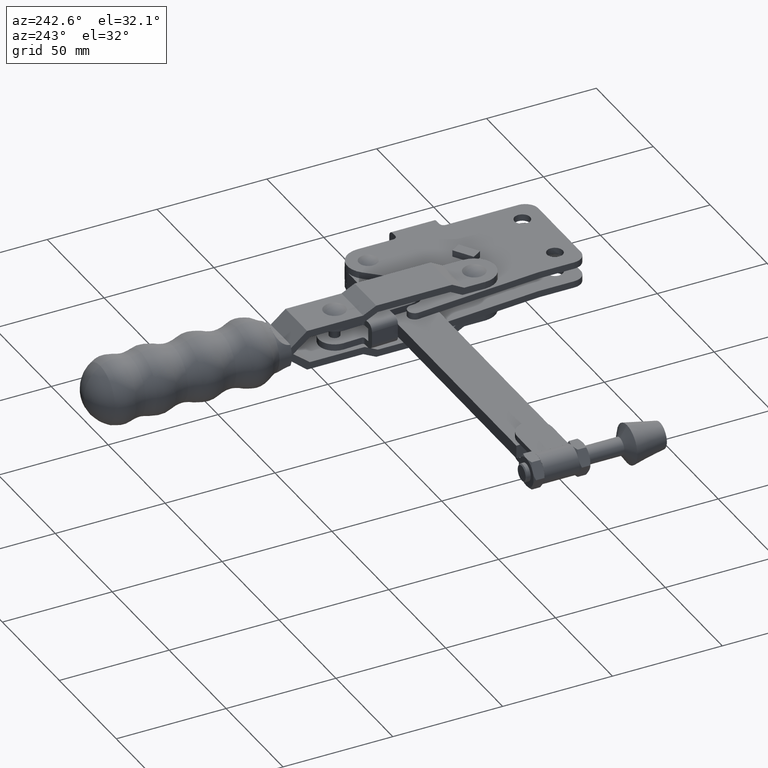
[diagram: clean part render]
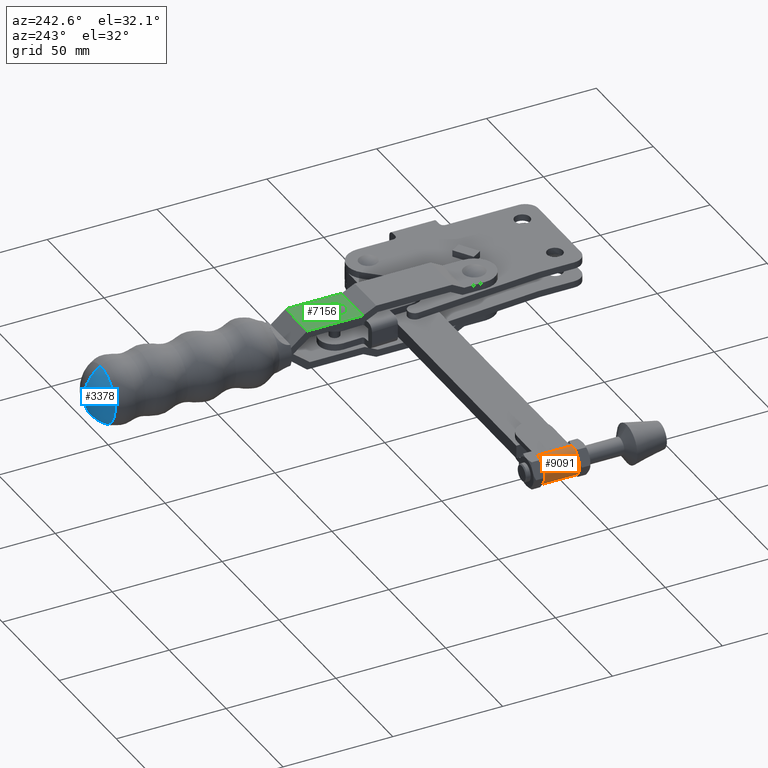
[diagram: same view with three faces highlighted in distinct colors, each labeled with its STEP entity id]
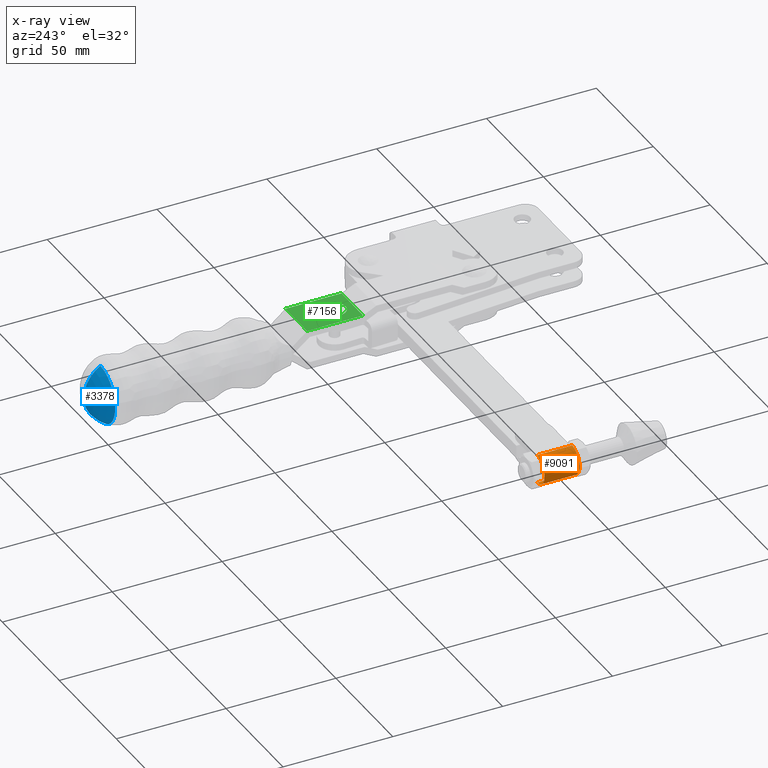
[diagram: x-ray of the same camera — body ghosted, the three highlighted faces saturated]
A machine part, auxiliary view with three faces highlighted in distinct colors.
The next image is the same camera in x-ray (body ghosted, the three faces saturated) — at least one of them is partly hidden behind the body in this view.
Their STEP definitions:

[orange] entity #9091 — the highlighted cylindrical surface (edge-blend (fillet) strip) has radius 6.55 mm, axis along (-0, -1, -0).
#267 = ORIENTED_EDGE ( 'NONE', *, *, #6316, .F. ) ;
#1061 = EDGE_CURVE ( 'NONE', #5328, #2572, #3614, .T. ) ;
#1177 = CIRCLE ( 'NONE', #1557, 6.550000000000000700 ) ;
#1210 = DIRECTION ( 'NONE',  ( 0.0000000000000000000, 0.0000000000000000000, -1.000000000000000000 ) ) ;
#1299 = DIRECTION ( 'NONE',  ( -0.0000000000000000000, -1.000000000000000000, -0.0000000000000000000 ) ) ;
#1363 = CARTESIAN_POINT ( 'NONE',  ( -173.2739711762832800, 68.61000000000024100, -5.204170427930421300E-015 ) ) ;
#1557 = AXIS2_PLACEMENT_3D ( 'NONE', #9104, #2847, #8998 ) ;
#2204 = DIRECTION ( 'NONE',  ( 1.000000000000000000, 0.0000000000000000000, 0.0000000000000000000 ) ) ;
#2220 = CARTESIAN_POINT ( 'NONE',  ( -173.2739711762832800, 68.61000000000024100, -5.204170427930421300E-015 ) ) ;
#2269 = DIRECTION ( 'NONE',  ( 0.0000000000000000000, 1.000000000000000000, 0.0000000000000000000 ) ) ;
#2521 = AXIS2_PLACEMENT_3D ( 'NONE', #1363, #1299, #1210 ) ;
#2572 = VERTEX_POINT ( 'NONE', #5743 ) ;
#2754 = VECTOR ( 'NONE', #7175, 1000.000000000000000 ) ;
#2847 = DIRECTION ( 'NONE',  ( 0.0000000000000000000, 1.000000000000000000, 0.0000000000000000000 ) ) ;
#3504 = CARTESIAN_POINT ( 'NONE',  ( -173.2739711762832800, 52.71000000000024200, 6.549999999999995400 ) ) ;
#3614 = LINE ( 'NONE', #6828, #7815 ) ;
#4118 = CARTESIAN_POINT ( 'NONE',  ( -173.2739711762832800, 68.61000000000024100, -6.550000000000005200 ) ) ;
#4256 = ORIENTED_EDGE ( 'NONE', *, *, #1061, .T. ) ;
#4510 = VERTEX_POINT ( 'NONE', #3504 ) ;
#4955 = ORIENTED_EDGE ( 'NONE', *, *, #7059, .T. ) ;
#5328 = VERTEX_POINT ( 'NONE', #4118 ) ;
#5743 = CARTESIAN_POINT ( 'NONE',  ( -173.2739711762832800, 52.71000000000024200, -6.550000000000005200 ) ) ;
#5823 = VERTEX_POINT ( 'NONE', #7888 ) ;
#5858 = DIRECTION ( 'NONE',  ( -0.0000000000000000000, -1.000000000000000000, -0.0000000000000000000 ) ) ;
#6128 = CIRCLE ( 'NONE', #6916, 6.550000000000000700 ) ;
#6316 = EDGE_CURVE ( 'NONE', #5823, #4510, #7117, .T. ) ;
#6828 = CARTESIAN_POINT ( 'NONE',  ( -173.2739711762832800, 68.61000000000024100, -6.550000000000005200 ) ) ;
#6916 = AXIS2_PLACEMENT_3D ( 'NONE', #2220, #2269, #2204 ) ;
#6997 = CARTESIAN_POINT ( 'NONE',  ( -173.2739711762832800, 68.61000000000024100, 6.549999999999995400 ) ) ;
#7059 = EDGE_CURVE ( 'NONE', #2572, #4510, #1177, .T. ) ;
#7117 = LINE ( 'NONE', #6997, #2754 ) ;
#7175 = DIRECTION ( 'NONE',  ( -0.0000000000000000000, -1.000000000000000000, -0.0000000000000000000 ) ) ;
#7253 = EDGE_LOOP ( 'NONE', ( #267, #7540, #4256, #4955 ) ) ;
#7540 = ORIENTED_EDGE ( 'NONE', *, *, #9702, .F. ) ;
#7815 = VECTOR ( 'NONE', #5858, 1000.000000000000000 ) ;
#7888 = CARTESIAN_POINT ( 'NONE',  ( -173.2739711762832800, 68.61000000000024100, 6.549999999999995400 ) ) ;
#8351 = CYLINDRICAL_SURFACE ( 'NONE', #2521, 6.550000000000000700 ) ;
#8998 = DIRECTION ( 'NONE',  ( 1.000000000000000000, 0.0000000000000000000, 0.0000000000000000000 ) ) ;
#9091 = ADVANCED_FACE ( 'NONE', ( #9460 ), #8351, .T. ) ;
#9104 = CARTESIAN_POINT ( 'NONE',  ( -173.2739711762832800, 52.71000000000024200, -5.204170427930421300E-015 ) ) ;
#9460 = FACE_OUTER_BOUND ( 'NONE', #7253, .T. ) ;
#9702 = EDGE_CURVE ( 'NONE', #5328, #5823, #6128, .T. ) ;

[blue] entity #3378 — the highlighted toroidal blend (fillet) surface has major radius 0.0116 mm and minor (blend) radius 15.0361 mm.
#330 = DIRECTION ( 'NONE',  ( 5.301320001231254800E-005, 0.9999999985948002700, 0.0000000000000000000 ) ) ;
#347 = DIRECTION ( 'NONE',  ( 0.9999999985948003800, -5.301320001245036400E-005, -1.908191406062422600E-016 ) ) ;
#370 = CARTESIAN_POINT ( 'NONE',  ( -40.88923383545749600, 191.3238571931479200, -0.01160999269274295600 ) ) ;
#948 = AXIS2_PLACEMENT_3D ( 'NONE', #7573, #9713, #1890 ) ;
#1028 = CIRCLE ( 'NONE', #10066, 15.03614265763732800 ) ;
#1890 = DIRECTION ( 'NONE',  ( 1.882973044817432600E-023, 3.551894701186225200E-019, -1.000000000000000000 ) ) ;
#2928 = VERTEX_POINT ( 'NONE', #5099 ) ;
#3367 = CARTESIAN_POINT ( 'NONE',  ( -40.88883527839028900, 198.8419294195952300, 3.194443237754403600E-013 ) ) ;
#3378 = ADVANCED_FACE ( 'NONE', ( #4137 ), #3432, .T. ) ;
#3432 = TOROIDAL_SURFACE ( 'NONE', #948, -0.01160999269306239900, 15.03614265763732400 ) ;
#4108 = ORIENTED_EDGE ( 'NONE', *, *, #4171, .F. ) ;
#4137 = FACE_OUTER_BOUND ( 'NONE', #9400, .T. ) ;
#4171 = EDGE_CURVE ( 'NONE', #7106, #2928, #8169, .T. ) ;
#4295 = AXIS2_PLACEMENT_3D ( 'NONE', #370, #347, #330 ) ;
#4408 = CIRCLE ( 'NONE', #4295, 15.03614265763732800 ) ;
#4783 = DIRECTION ( 'NONE',  ( 0.0000000000000000000, 0.0000000000000000000, -1.000000000000000000 ) ) ;
#5099 = CARTESIAN_POINT ( 'NONE',  ( -40.88883527839029600, 198.8419294195952300, -13.01007099940186700 ) ) ;
#5588 = AXIS2_PLACEMENT_3D ( 'NONE', #3367, #7925, #4783 ) ;
#6646 = ORIENTED_EDGE ( 'NONE', *, *, #6974, .F. ) ;
#6974 = EDGE_CURVE ( 'NONE', #7135, #7106, #4408, .T. ) ;
#7106 = VERTEX_POINT ( 'NONE', #8513 ) ;
#7135 = VERTEX_POINT ( 'NONE', #7878 ) ;
#7573 = CARTESIAN_POINT ( 'NONE',  ( -40.88923383545749600, 191.3238571931479200, 3.194416534353424200E-013 ) ) ;
#7865 = EDGE_CURVE ( 'NONE', #7135, #2928, #1028, .T. ) ;
#7878 = CARTESIAN_POINT ( 'NONE',  ( -40.88843672165699400, 206.3599953473915300, 3.194469941133010700E-013 ) ) ;
#7925 = DIRECTION ( 'NONE',  ( -5.301320001245037100E-005, -0.9999999985948004900, -3.551894706177347300E-019 ) ) ;
#8169 = CIRCLE ( 'NONE', #5588, 13.01007099940219200 ) ;
#8359 = ORIENTED_EDGE ( 'NONE', *, *, #7865, .T. ) ;
#8513 = CARTESIAN_POINT ( 'NONE',  ( -40.88883527839029600, 198.8419294195952300, 13.01007099940250600 ) ) ;
#8632 = DIRECTION ( 'NONE',  ( -5.301320001231254800E-005, -0.9999999985948002700, 0.0000000000000000000 ) ) ;
#8659 = DIRECTION ( 'NONE',  ( -0.9999999985948003800, 5.301320001245036400E-005, 6.835446069150691700E-017 ) ) ;
#8662 = CARTESIAN_POINT ( 'NONE',  ( -40.88923383545749600, 191.3238571931479200, 0.01160999269338183900 ) ) ;
#9400 = EDGE_LOOP ( 'NONE', ( #6646, #8359, #4108 ) ) ;
#9713 = DIRECTION ( 'NONE',  ( -5.301320001245035700E-005, -0.9999999985948002700, -3.551894706177346300E-019 ) ) ;
#10066 = AXIS2_PLACEMENT_3D ( 'NONE', #8662, #8659, #8632 ) ;

[green] entity #7156 — the highlighted planar face has unit normal (0, -0, 1).
#423 = DIRECTION ( 'NONE',  ( 1.000000000000000000, 0.0000000000000000000, 0.0000000000000000000 ) ) ;
#436 = DIRECTION ( 'NONE',  ( 6.936611590567913300E-020, -1.586539380122181100E-020, 1.000000000000000000 ) ) ;
#1005 = CARTESIAN_POINT ( 'NONE',  ( -50.39491651151166700, 84.13050354741129400, 9.199999999999551600 ) ) ;
#1520 = ORIENTED_EDGE ( 'NONE', *, *, #8979, .F. ) ;
#1553 = VERTEX_POINT ( 'NONE', #9288 ) ;
#1567 = AXIS2_PLACEMENT_3D ( 'NONE', #6059, #436, #423 ) ;
#1867 = LINE ( 'NONE', #5274, #10145 ) ;
#2177 = CARTESIAN_POINT ( 'NONE',  ( -31.39491653821045600, 84.12949629661106600, 9.199999999999551600 ) ) ;
#2184 = DIRECTION ( 'NONE',  ( -5.301320001215025700E-005, -0.9999999985948002700, -1.586171645915118900E-020 ) ) ;
#2241 = FACE_BOUND ( 'NONE', #2297, .T. ) ;
#2297 = EDGE_LOOP ( 'NONE', ( #5127, #9479 ) ) ;
#2529 = VERTEX_POINT ( 'NONE', #3757 ) ;
#3300 = DIRECTION ( 'NONE',  ( 1.000000000000000000, 0.0000000000000000000, 0.0000000000000000000 ) ) ;
#3303 = LINE ( 'NONE', #4192, #5356 ) ;
#3405 = VECTOR ( 'NONE', #2184, 1000.000000000000100 ) ;
#3597 = CARTESIAN_POINT ( 'NONE',  ( -31.39491653821045600, 84.12949629661106600, 9.199999999999551600 ) ) ;
#3757 = CARTESIAN_POINT ( 'NONE',  ( -40.89448711794088400, 87.22999991062920300, 9.199999999999551600 ) ) ;
#3774 = ORIENTED_EDGE ( 'NONE', *, *, #8486, .T. ) ;
#3987 = DIRECTION ( 'NONE',  ( 0.9999999985948002700, -5.301320001215025700E-005, -6.936695688350072000E-020 ) ) ;
#4010 = DIRECTION ( 'NONE',  ( 6.936611590567913300E-020, -1.586539380122181100E-020, 1.000000000000000000 ) ) ;
#4038 = CARTESIAN_POINT ( 'NONE',  ( -40.89448711794088400, 92.22999991062920300, 9.199999999999551600 ) ) ;
#4115 = EDGE_CURVE ( 'NONE', #1553, #8787, #4420, .T. ) ;
#4192 = CARTESIAN_POINT ( 'NONE',  ( -50.39356467491135300, 109.6305035115787800, 9.199999999999551600 ) ) ;
#4420 = LINE ( 'NONE', #1005, #6454 ) ;
#5127 = ORIENTED_EDGE ( 'NONE', *, *, #9804, .F. ) ;
#5160 = DIRECTION ( 'NONE',  ( -5.301320001215025700E-005, -0.9999999985948002700, -1.586171645915118900E-020 ) ) ;
#5274 = CARTESIAN_POINT ( 'NONE',  ( -50.39491651151166700, 84.13050354741129400, 9.199999999999551600 ) ) ;
#5356 = VECTOR ( 'NONE', #3987, 1000.000000000000100 ) ;
#5449 = LINE ( 'NONE', #2177, #3405 ) ;
#5576 = ORIENTED_EDGE ( 'NONE', *, *, #8698, .F. ) ;
#5736 = CARTESIAN_POINT ( 'NONE',  ( -50.39356467491135300, 109.6305035115787800, 9.199999999999551600 ) ) ;
#6055 = ORIENTED_EDGE ( 'NONE', *, *, #4115, .T. ) ;
#6059 = CARTESIAN_POINT ( 'NONE',  ( -40.89448711794088400, 92.22999991062920300, 9.199999999999551600 ) ) ;
#6254 = EDGE_LOOP ( 'NONE', ( #1520, #5576, #3774, #6055 ) ) ;
#6454 = VECTOR ( 'NONE', #9424, 1000.000000000000100 ) ;
#6576 = EDGE_CURVE ( 'NONE', #2529, #10057, #7109, .T. ) ;
#6793 = CARTESIAN_POINT ( 'NONE',  ( -31.39356470161014600, 109.6294962607785500, 9.199999999999551600 ) ) ;
#7019 = CIRCLE ( 'NONE', #1567, 5.000000000000004400 ) ;
#7109 = CIRCLE ( 'NONE', #9840, 5.000000000000004400 ) ;
#7156 = ADVANCED_FACE ( 'NONE', ( #2241, #8277 ), #7302, .T. ) ;
#7263 = DIRECTION ( 'NONE',  ( 0.9999999985948002700, -5.301320001215025700E-005, -6.936695688350072000E-020 ) ) ;
#7302 = PLANE ( 'NONE',  #7828 ) ;
#7332 = CARTESIAN_POINT ( 'NONE',  ( -50.39491651151166700, 84.13050354741129400, 9.199999999999551600 ) ) ;
#7346 = DIRECTION ( 'NONE',  ( 6.936611590567912100E-020, -1.586539380122181400E-020, 1.000000000000000000 ) ) ;
#7828 = AXIS2_PLACEMENT_3D ( 'NONE', #7332, #7346, #7263 ) ;
#8120 = VERTEX_POINT ( 'NONE', #6793 ) ;
#8277 = FACE_OUTER_BOUND ( 'NONE', #6254, .T. ) ;
#8385 = VERTEX_POINT ( 'NONE', #5736 ) ;
#8486 = EDGE_CURVE ( 'NONE', #8385, #1553, #1867, .T. ) ;
#8698 = EDGE_CURVE ( 'NONE', #8385, #8120, #3303, .T. ) ;
#8787 = VERTEX_POINT ( 'NONE', #3597 ) ;
#8979 = EDGE_CURVE ( 'NONE', #8120, #8787, #5449, .T. ) ;
#9288 = CARTESIAN_POINT ( 'NONE',  ( -50.39491651151166700, 84.13050354741129400, 9.199999999999551600 ) ) ;
#9424 = DIRECTION ( 'NONE',  ( 0.9999999985948002700, -5.301320001215025700E-005, -6.936695688350072000E-020 ) ) ;
#9450 = CARTESIAN_POINT ( 'NONE',  ( -40.89448711794088400, 97.22999991062920300, 9.199999999999551600 ) ) ;
#9479 = ORIENTED_EDGE ( 'NONE', *, *, #6576, .F. ) ;
#9804 = EDGE_CURVE ( 'NONE', #10057, #2529, #7019, .T. ) ;
#9840 = AXIS2_PLACEMENT_3D ( 'NONE', #4038, #4010, #3300 ) ;
#10057 = VERTEX_POINT ( 'NONE', #9450 ) ;
#10145 = VECTOR ( 'NONE', #5160, 1000.000000000000100 ) ;